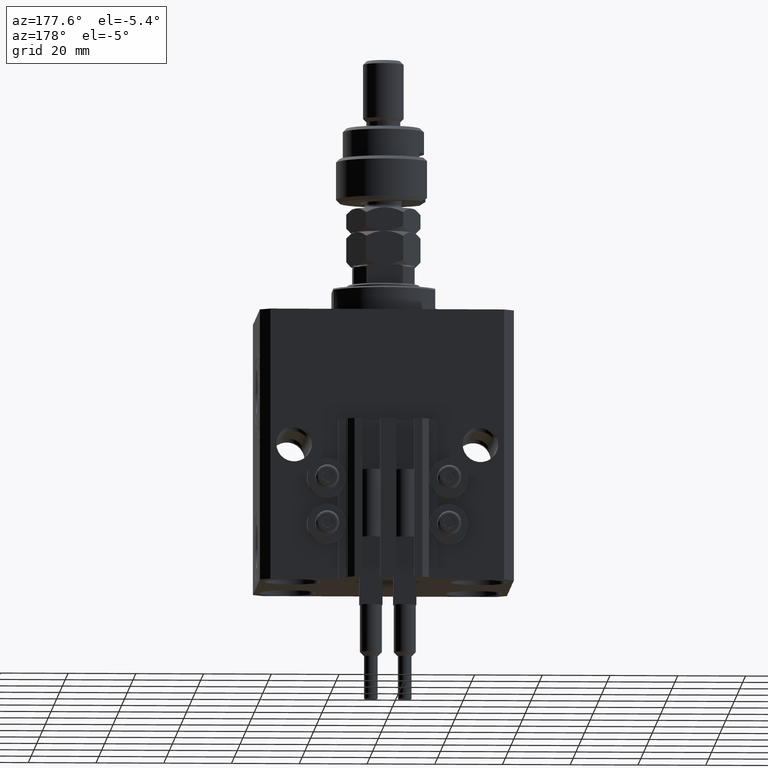
[diagram: clean part render]
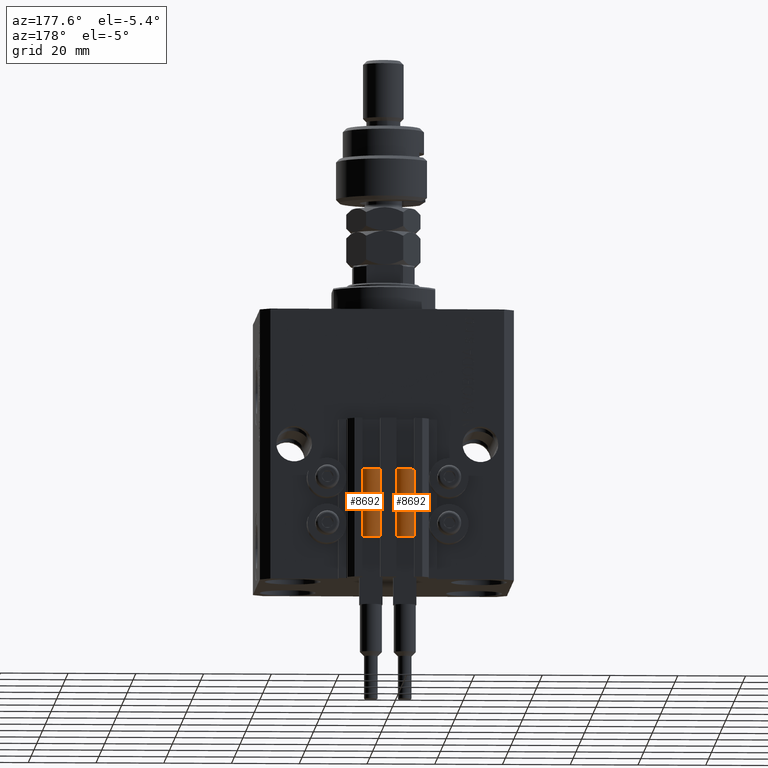
[diagram: same view with one multi-face feature highlighted, each face labeled with its STEP entity id]
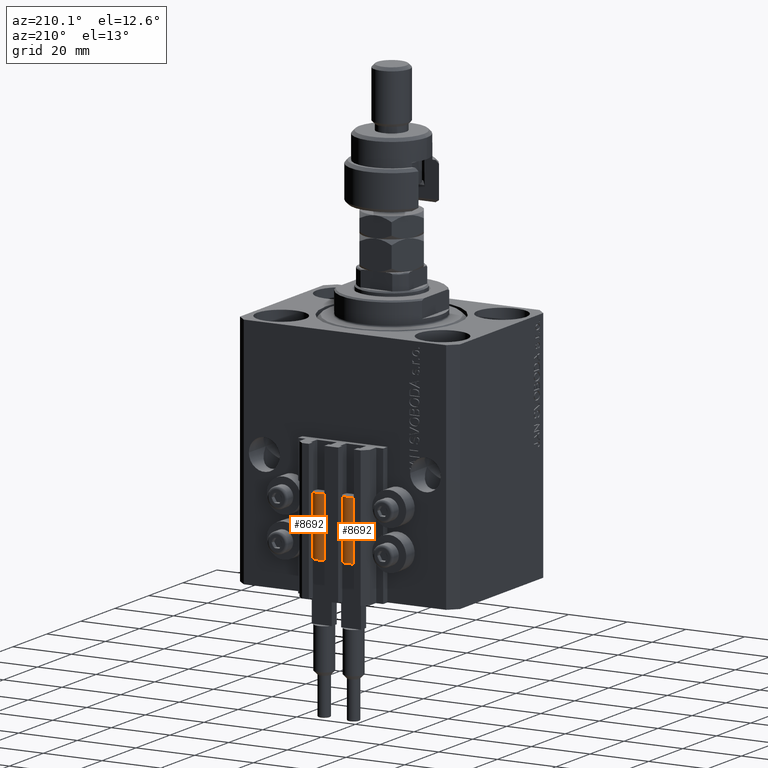
[diagram: same view with one multi-face feature highlighted, each face labeled with its STEP entity id]
A machine part, auxiliary view. The highlighted faces form ONE feature: a constant-radius fillet chain: 2 tangent blend faces with common blend radius 3.4 mm. The faces share edges in the B-rep.
A second angle (auxiliary view) of the same feature is appended — it is thin or edge-on in the first view.
Their STEP definitions:
[1] entity #8692 (Cylinder):
#560 = CARTESIAN_POINT ( 'NONE',  ( 3.051229260478471428, 1.500000000000000000, 20.00000000000000000 ) ) ;
#761 = VECTOR ( 'NONE', #4512, 1000.000000000000000 ) ;
#937 = CARTESIAN_POINT ( 'NONE',  ( 3.400000000000000355, 4.163799117101001052E-16, 20.00000000000000000 ) ) ;
#1366 = VERTEX_POINT ( 'NONE', #44810 ) ;
#2278 = CYLINDRICAL_SURFACE ( 'NONE', #5764, 3.400000000000000355 ) ;
#2927 = DIRECTION ( 'NONE',  ( 1.000000000000000000, 0.000000000000000000, 0.000000000000000000 ) ) ;
#4467 = AXIS2_PLACEMENT_3D ( 'NONE', #32674, #25027, #47491 ) ;
#4512 = DIRECTION ( 'NONE',  ( -0.000000000000000000, -0.000000000000000000, -1.000000000000000000 ) ) ;
#4764 = LINE ( 'NONE', #937, #761 ) ;
#5764 = AXIS2_PLACEMENT_3D ( 'NONE', #33656, #33416, #48992 ) ;
#6888 = VERTEX_POINT ( 'NONE', #26849 ) ;
#7383 = EDGE_CURVE ( 'NONE', #6888, #37389, #4764, .T. ) ;
#8692 = ADVANCED_FACE ( 'NONE', ( #37255 ), #2278, .T. ) ;
#9560 = CARTESIAN_POINT ( 'NONE',  ( 0.000000000000000000, 0.000000000000000000, 20.00000000000000000 ) ) ;
#10905 = DIRECTION ( 'NONE',  ( 1.000000000000000000, 0.000000000000000000, 0.000000000000000000 ) ) ;
#11187 = EDGE_CURVE ( 'NONE', #6888, #28815, #49016, .T. ) ;
#13135 = DIRECTION ( 'NONE',  ( 0.000000000000000000, 0.000000000000000000, 1.000000000000000000 ) ) ;
#13525 = CARTESIAN_POINT ( 'NONE',  ( -3.400000000000000355, 0.000000000000000000, 0.000000000000000000 ) ) ;
#14170 = CARTESIAN_POINT ( 'NONE',  ( 0.000000000000000000, 0.000000000000000000, 20.00000000000000000 ) ) ;
#15588 = AXIS2_PLACEMENT_3D ( 'NONE', #9560, #13135, #44523 ) ;
#19126 = DIRECTION ( 'NONE',  ( -0.000000000000000000, -0.000000000000000000, -1.000000000000000000 ) ) ;
#19428 = ORIENTED_EDGE ( 'NONE', *, *, #7383, .T. ) ;
#20501 = CARTESIAN_POINT ( 'NONE',  ( 3.400000000000000355, 4.163799117101001052E-16, 0.000000000000000000 ) ) ;
#20765 = CIRCLE ( 'NONE', #4467, 3.400000000000000355 ) ;
#21658 = AXIS2_PLACEMENT_3D ( 'NONE', #34631, #42563, #10905 ) ;
#21839 = DIRECTION ( 'NONE',  ( 0.000000000000000000, 0.000000000000000000, 1.000000000000000000 ) ) ;
#22249 = EDGE_CURVE ( 'NONE', #1366, #39038, #42115, .T. ) ;
#23199 = VECTOR ( 'NONE', #19126, 1000.000000000000000 ) ;
#25027 = DIRECTION ( 'NONE',  ( 0.000000000000000000, 0.000000000000000000, 1.000000000000000000 ) ) ;
#26849 = CARTESIAN_POINT ( 'NONE',  ( 3.400000000000000355, 0.000000000000000000, 20.00000000000000000 ) ) ;
#27327 = ORIENTED_EDGE ( 'NONE', *, *, #22249, .F. ) ;
#27542 = ORIENTED_EDGE ( 'NONE', *, *, #35034, .F. ) ;
#28815 = VERTEX_POINT ( 'NONE', #560 ) ;
#31138 = CARTESIAN_POINT ( 'NONE',  ( -3.051229260478471428, 1.500000000000000000, 20.00000000000000000 ) ) ;
#32079 = AXIS2_PLACEMENT_3D ( 'NONE', #14170, #21839, #2927 ) ;
#32674 = CARTESIAN_POINT ( 'NONE',  ( 0.000000000000000000, 0.000000000000000000, 20.00000000000000000 ) ) ;
#32934 = CIRCLE ( 'NONE', #32079, 3.400000000000000355 ) ;
#33416 = DIRECTION ( 'NONE',  ( -0.000000000000000000, -0.000000000000000000, -1.000000000000000000 ) ) ;
#33656 = CARTESIAN_POINT ( 'NONE',  ( 0.000000000000000000, 0.000000000000000000, 20.00000000000000000 ) ) ;
#34631 = CARTESIAN_POINT ( 'NONE',  ( 0.000000000000000000, 0.000000000000000000, 0.000000000000000000 ) ) ;
#35034 = EDGE_CURVE ( 'NONE', #38747, #1366, #32934, .T. ) ;
#35819 = EDGE_LOOP ( 'NONE', ( #36507, #19428, #47004, #27327, #27542, #49969 ) ) ;
#36507 = ORIENTED_EDGE ( 'NONE', *, *, #11187, .F. ) ;
#36535 = EDGE_CURVE ( 'NONE', #28815, #38747, #20765, .T. ) ;
#37255 = FACE_OUTER_BOUND ( 'NONE', #35819, .T. ) ;
#37389 = VERTEX_POINT ( 'NONE', #20501 ) ;
#37854 = EDGE_CURVE ( 'NONE', #37389, #39038, #37931, .T. ) ;
#37931 = CIRCLE ( 'NONE', #21658, 3.400000000000000355 ) ;
#38283 = CARTESIAN_POINT ( 'NONE',  ( -3.400000000000000355, 0.000000000000000000, 20.00000000000000000 ) ) ;
#38747 = VERTEX_POINT ( 'NONE', #31138 ) ;
#39038 = VERTEX_POINT ( 'NONE', #13525 ) ;
#42115 = LINE ( 'NONE', #38283, #23199 ) ;
#42563 = DIRECTION ( 'NONE',  ( 0.000000000000000000, 0.000000000000000000, 1.000000000000000000 ) ) ;
#44523 = DIRECTION ( 'NONE',  ( 1.000000000000000000, 0.000000000000000000, 0.000000000000000000 ) ) ;
#44810 = CARTESIAN_POINT ( 'NONE',  ( -3.399999999999999467, -4.915049848600952119E-16, 20.00000000000000000 ) ) ;
#47004 = ORIENTED_EDGE ( 'NONE', *, *, #37854, .T. ) ;
#47491 = DIRECTION ( 'NONE',  ( 1.000000000000000000, 0.000000000000000000, 0.000000000000000000 ) ) ;
#48992 = DIRECTION ( 'NONE',  ( -1.000000000000000000, 0.000000000000000000, 0.000000000000000000 ) ) ;
#49016 = CIRCLE ( 'NONE', #15588, 3.400000000000000355 ) ;
#49969 = ORIENTED_EDGE ( 'NONE', *, *, #36535, .F. ) ;
[2] entity #8692 (Cylinder):
#560 = CARTESIAN_POINT ( 'NONE',  ( 3.051229260478471428, 1.500000000000000000, 20.00000000000000000 ) ) ;
#761 = VECTOR ( 'NONE', #4512, 1000.000000000000000 ) ;
#937 = CARTESIAN_POINT ( 'NONE',  ( 3.400000000000000355, 4.163799117101001052E-16, 20.00000000000000000 ) ) ;
#1366 = VERTEX_POINT ( 'NONE', #44810 ) ;
#2278 = CYLINDRICAL_SURFACE ( 'NONE', #5764, 3.400000000000000355 ) ;
#2927 = DIRECTION ( 'NONE',  ( 1.000000000000000000, 0.000000000000000000, 0.000000000000000000 ) ) ;
#4467 = AXIS2_PLACEMENT_3D ( 'NONE', #32674, #25027, #47491 ) ;
#4512 = DIRECTION ( 'NONE',  ( -0.000000000000000000, -0.000000000000000000, -1.000000000000000000 ) ) ;
#4764 = LINE ( 'NONE', #937, #761 ) ;
#5764 = AXIS2_PLACEMENT_3D ( 'NONE', #33656, #33416, #48992 ) ;
#6888 = VERTEX_POINT ( 'NONE', #26849 ) ;
#7383 = EDGE_CURVE ( 'NONE', #6888, #37389, #4764, .T. ) ;
#8692 = ADVANCED_FACE ( 'NONE', ( #37255 ), #2278, .T. ) ;
#9560 = CARTESIAN_POINT ( 'NONE',  ( 0.000000000000000000, 0.000000000000000000, 20.00000000000000000 ) ) ;
#10905 = DIRECTION ( 'NONE',  ( 1.000000000000000000, 0.000000000000000000, 0.000000000000000000 ) ) ;
#11187 = EDGE_CURVE ( 'NONE', #6888, #28815, #49016, .T. ) ;
#13135 = DIRECTION ( 'NONE',  ( 0.000000000000000000, 0.000000000000000000, 1.000000000000000000 ) ) ;
#13525 = CARTESIAN_POINT ( 'NONE',  ( -3.400000000000000355, 0.000000000000000000, 0.000000000000000000 ) ) ;
#14170 = CARTESIAN_POINT ( 'NONE',  ( 0.000000000000000000, 0.000000000000000000, 20.00000000000000000 ) ) ;
#15588 = AXIS2_PLACEMENT_3D ( 'NONE', #9560, #13135, #44523 ) ;
#19126 = DIRECTION ( 'NONE',  ( -0.000000000000000000, -0.000000000000000000, -1.000000000000000000 ) ) ;
#19428 = ORIENTED_EDGE ( 'NONE', *, *, #7383, .T. ) ;
#20501 = CARTESIAN_POINT ( 'NONE',  ( 3.400000000000000355, 4.163799117101001052E-16, 0.000000000000000000 ) ) ;
#20765 = CIRCLE ( 'NONE', #4467, 3.400000000000000355 ) ;
#21658 = AXIS2_PLACEMENT_3D ( 'NONE', #34631, #42563, #10905 ) ;
#21839 = DIRECTION ( 'NONE',  ( 0.000000000000000000, 0.000000000000000000, 1.000000000000000000 ) ) ;
#22249 = EDGE_CURVE ( 'NONE', #1366, #39038, #42115, .T. ) ;
#23199 = VECTOR ( 'NONE', #19126, 1000.000000000000000 ) ;
#25027 = DIRECTION ( 'NONE',  ( 0.000000000000000000, 0.000000000000000000, 1.000000000000000000 ) ) ;
#26849 = CARTESIAN_POINT ( 'NONE',  ( 3.400000000000000355, 0.000000000000000000, 20.00000000000000000 ) ) ;
#27327 = ORIENTED_EDGE ( 'NONE', *, *, #22249, .F. ) ;
#27542 = ORIENTED_EDGE ( 'NONE', *, *, #35034, .F. ) ;
#28815 = VERTEX_POINT ( 'NONE', #560 ) ;
#31138 = CARTESIAN_POINT ( 'NONE',  ( -3.051229260478471428, 1.500000000000000000, 20.00000000000000000 ) ) ;
#32079 = AXIS2_PLACEMENT_3D ( 'NONE', #14170, #21839, #2927 ) ;
#32674 = CARTESIAN_POINT ( 'NONE',  ( 0.000000000000000000, 0.000000000000000000, 20.00000000000000000 ) ) ;
#32934 = CIRCLE ( 'NONE', #32079, 3.400000000000000355 ) ;
#33416 = DIRECTION ( 'NONE',  ( -0.000000000000000000, -0.000000000000000000, -1.000000000000000000 ) ) ;
#33656 = CARTESIAN_POINT ( 'NONE',  ( 0.000000000000000000, 0.000000000000000000, 20.00000000000000000 ) ) ;
#34631 = CARTESIAN_POINT ( 'NONE',  ( 0.000000000000000000, 0.000000000000000000, 0.000000000000000000 ) ) ;
#35034 = EDGE_CURVE ( 'NONE', #38747, #1366, #32934, .T. ) ;
#35819 = EDGE_LOOP ( 'NONE', ( #36507, #19428, #47004, #27327, #27542, #49969 ) ) ;
#36507 = ORIENTED_EDGE ( 'NONE', *, *, #11187, .F. ) ;
#36535 = EDGE_CURVE ( 'NONE', #28815, #38747, #20765, .T. ) ;
#37255 = FACE_OUTER_BOUND ( 'NONE', #35819, .T. ) ;
#37389 = VERTEX_POINT ( 'NONE', #20501 ) ;
#37854 = EDGE_CURVE ( 'NONE', #37389, #39038, #37931, .T. ) ;
#37931 = CIRCLE ( 'NONE', #21658, 3.400000000000000355 ) ;
#38283 = CARTESIAN_POINT ( 'NONE',  ( -3.400000000000000355, 0.000000000000000000, 20.00000000000000000 ) ) ;
#38747 = VERTEX_POINT ( 'NONE', #31138 ) ;
#39038 = VERTEX_POINT ( 'NONE', #13525 ) ;
#42115 = LINE ( 'NONE', #38283, #23199 ) ;
#42563 = DIRECTION ( 'NONE',  ( 0.000000000000000000, 0.000000000000000000, 1.000000000000000000 ) ) ;
#44523 = DIRECTION ( 'NONE',  ( 1.000000000000000000, 0.000000000000000000, 0.000000000000000000 ) ) ;
#44810 = CARTESIAN_POINT ( 'NONE',  ( -3.399999999999999467, -4.915049848600952119E-16, 20.00000000000000000 ) ) ;
#47004 = ORIENTED_EDGE ( 'NONE', *, *, #37854, .T. ) ;
#47491 = DIRECTION ( 'NONE',  ( 1.000000000000000000, 0.000000000000000000, 0.000000000000000000 ) ) ;
#48992 = DIRECTION ( 'NONE',  ( -1.000000000000000000, 0.000000000000000000, 0.000000000000000000 ) ) ;
#49016 = CIRCLE ( 'NONE', #15588, 3.400000000000000355 ) ;
#49969 = ORIENTED_EDGE ( 'NONE', *, *, #36535, .F. ) ;